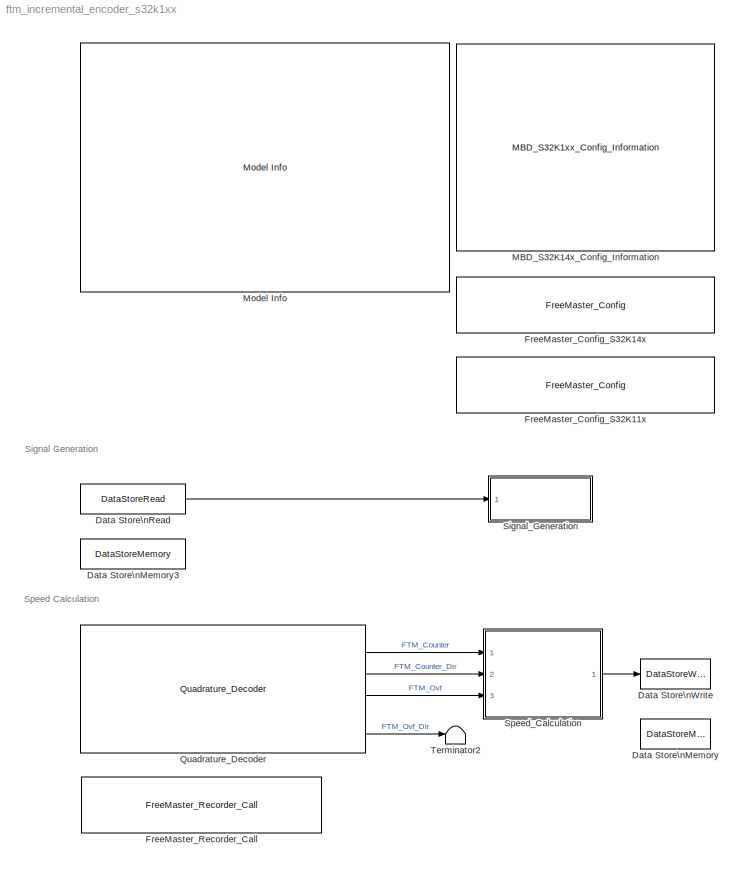
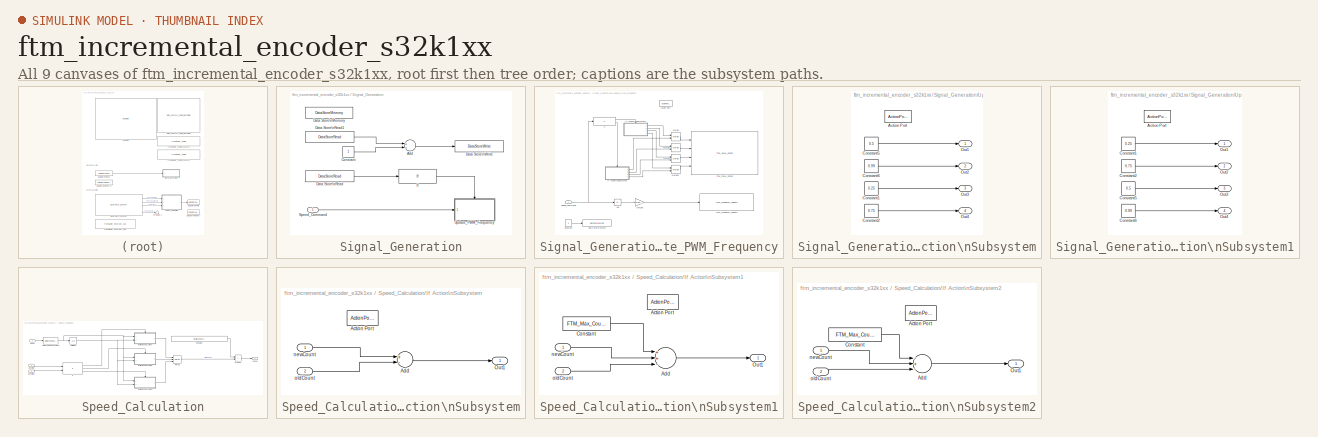
[diagram: thumbnail index - all 9 canvases of the model, root first then tree order]
MODEL ftm_incremental_encoder_s32k1xx
KIND model
CONFIG InitFcn = mbd_s32k_consistency_checks(bdroot(gcs));
BLOCK [DataStoreMemory] Data Store\nMemory
  DataStoreName = Motor_Speed
  ReadBeforeWriteMsg = warning
  SID = 170
  ShowAdditionalParam = off
  WriteAfterReadMsg = warning
  WriteAfterWriteMsg = warning
BLOCK [DataStoreMemory] Data Store\nMemory3
  DataStoreName = Speed_Command
  InitialValue = 500
  OutDataTypeStr = single
  ReadBeforeWriteMsg = warning
  SID = 235
  ShowAdditionalParam = off
  WriteAfterReadMsg = warning
  WriteAfterWriteMsg = warning
BLOCK [DataStoreRead] Data Store\nRead
  DataStoreName = Speed_Command
  Ports = [0, 1]
  SID = 236
BLOCK [DataStoreWrite] Data Store\nWrite
  DataStoreElements = Motor_Speed
  DataStoreName = Motor_Speed
  Ports = [1]
  SID = 172
BLOCK [Reference] FreeMaster_Config_S32K11x  REF=mbd_s32k1xx_ec_toolbox/Utility Blocks/FreeMaster_Config
  Commented = on
  Ports = []
  SID = 133
  SourceBlock = mbd_s32k1xx_ec_toolbox/Utility Blocks/FreeMaster_Config
  SourceType = fm_s32k_config
  baudrate = 57600
  comm_buffer_size = 255
  comm_buffer_size_auto = on
  comm_rqueue_size = 32
  comm_rqueue_size_default = on
  interface = LPUART0
  isr_prio = 1
  max_rec_vars = 8
  max_scope_vars = 8
  mode = Short Interrupt
  rec_buff_size = 1024
  rec_timebase = 0
  rec_timebase_unit = milliseconds
  rxd = PTB0: [LPUART0_RX | Receive]
  show_adv_opts = on
  txd = PTB1: [LPUART0_TX | Transmit]
  use_recorder = on
  use_scope = on
BLOCK [Reference] FreeMaster_Config_S32K14x  REF=mbd_s32k1xx_ec_toolbox/Utility Blocks/FreeMaster_Config
  Ports = []
  SID = 358
  SourceBlock = mbd_s32k1xx_ec_toolbox/Utility Blocks/FreeMaster_Config
  SourceType = fm_s32k_config
  baudrate = 57600
  comm_buffer_size = 255
  comm_buffer_size_auto = on
  comm_rqueue_size = 32
  comm_rqueue_size_default = on
  interface = LPUART1
  isr_prio = 1
  max_rec_vars = 8
  max_scope_vars = 8
  mode = Short Interrupt
  rec_buff_size = 1024
  rec_timebase = 0
  rec_timebase_unit = milliseconds
  rxd = PTC6: [LPUART1_RX | Receive]
  show_adv_opts = on
  txd = PTC7: [LPUART1_TX | Transmit]
  use_recorder = on
  use_scope = on
BLOCK [Reference] FreeMaster_Recorder_Call  REF=mbd_s32k1xx_ec_toolbox/Utility Blocks/FreeMaster_Recorder_Call
  Ports = []
  SID = 326
  SourceBlock = mbd_s32k1xx_ec_toolbox/Utility Blocks/FreeMaster_Recorder_Call
  SourceType = fm_s32k_recorder_call
BLOCK [Reference] MBD_S32K14x_Config_Information  REF=mbd_s32k1xx_ec_toolbox/MBD_S32K1xx_Config_Information
  ADC_PcrCheckEnDis = on
  AMMCLIB_PcrCheckEnDis = on
  CMP_PcrCheckEnDis = on
  CSEc_PcrCheckEnDis = on
  ConfigParams_PcrCheckEnDis = on
  FM_PcrCheckEnDis = on
  FTM_Dual_Edge_Inputs_PcrCheckEnDis = on
  FTM_Hall_Sensor_Inputs_PcrCheckEnDis = on
  FTM_Input_Edge_Inputs_PcrCheckEnDis = on
  FTM_PWM_PcrCheckEnDis = on
  FTM_Quadrature_Inputs_PcrCheckEnDis = on
  FlexCAN_PcrCheckEnDis = on
  FlexIO_PcrCheckEnDis = on
  GPIO_InputPcrCheckEnDis = on
  GPIO_OutputPcrCheckEnDis = on
  LIN_PcrCheckEnDis = on
  LPI2C_PcrCheckEnDis = on
  LPSPI_PcrCheckEnDis = on
  LPTMR_PcrCheckEnDis = on
  LPUART_PcrCheckEnDis = on
  ModelRef_PcrCheckEnDis = on
  PDB0_PcrCheckEnDis = on
  PIT_PcrCheckEnDis = on
  Ports = []
  Profile_PcrCheckEnDis = on
  RTC_PcrCheckEnDis = on
  SBC_PcrCheckEnDis = on
  SID = 1
  SourceBlock = mbd_s32k1xx_ec_toolbox/MBD_S32K1xx_Config_Information
  SourceType = MBDTBX_EC_S32K
  WDOG_PcrCheckEnDis = on
  config_params = []
  disp_str = Target : S32K144-48KB_SRAM\nPackage : 100-pin\nSystem clock : 80 MHz\nXTAL clock : External 8 MHz\nCompiler : IAR\nTarget Type : FLASH\nDownload Code after build : off\nStep Tick Interrupt Priority : 15
  ds_import_enable = on
  eDMA_PcrCheckEnDis = on
  gcc_target_assemble_opts = -mcpu=cortex-m4 -mthumb -mfloat-abi=hard -mfpu=fpv4-sp-d16 -g
  gcc_target_compile_opts = -mcpu=cortex-m4 -mthumb -mfloat-abi=hard -mfpu=fpv4-sp-d16 -O1 -g -gstrict-dwarf
  gcc_target_default_lcf = on
  gcc_target_link_opts = -mcpu=cortex-m4 -mthumb -mfloat-abi=hard -mfpu=fpv4-sp-d16
  gcc_target_user_lcf = S32K146_128_flash.ld
  ghs_target_assemble_opts = -cpu=cortexm4f -fpu=vfpv4_d16
  ghs_target_compile_opts = -cpu=cortexm4f -thumb -DARM_MATH_CM4 -fpu=vfpv4_d16 -fsingle -Ogeneral -Wundef -Wimplicit-int -Wshadow -Wtrigraphs --no_commons --gnu_asm -gnu99 -gdwarf-2 -G
  ghs_target_default_lcf = off
  ghs_target_link_opts = -cpu=cortexm4f -thumb -fpu=vfpv4_d16
  ghs_target_user_lcf = S32K146_128_flash.ld
  iar_target_assemble_opts = --cpu Cortex-M4F --thumb --fpu VFPv4_sp
  iar_target_compile_opts = --cpu=Cortex-M4F --thumb --fpu=VFPv4_sp -Ol -e --debug --dlib_config normal
  iar_target_default_lcf = off
  iar_target_link_opts = --no_exceptions --vfe --inline
  iar_target_user_lcf = S32K146_128_flash.icf
  mbdt_ver = 0
  mcu_steptick_prio = 0
  mcu_steptick_timer = LPIT Channel 0
  mcu_system_clock_freq = 80
  mcu_target_name = S32K146
  mcu_target_package = 144-LQFP
  mcu_target_sram_size = 128KB
  mcu_xtal_freq = External 8
  pil_download_enable = off
  pil_download_rate = 57600
  pil_opensda_drive = Custom
  pil_opensda_drive_custom = D
  pil_uart_instance = 0
  pil_uart_rx = PTA2: [LPUART0_RX | Receive]
  pil_uart_tx = PTA3: [LPUART0_TX | Transmit]
  rbl_com_port = Custom
  rbl_com_port_custom = COM1
  rbl_download_enable = on
  rbl_download_interface = OpenSDA
  rbl_restart_request = off
  rbl_start_delay = 5000000
  target_compiler = GCC
  target_memory = FLASH
BLOCK [Reference] Model Info  REF=simulink/Model-Wide\nUtilities/Model Info
  DisplayStringWithTags = Model Name: %<ModelName>\n\nDescription: %<Description>
  Frame = off
  HorizontalTextAlignment = Left
  LeftAlignmentValue = 0.02
  MaskDisplayString = Model Name: ftm_incremental_encoder_s32k1xx\\n\\nDescription: This model shows FlexTimer's Quadrature Decoder Mode.\\n\\nThe Quadrature Encoder signals of a running motor are emulated using the\\nblock called \"Signal_Generation\" using the FTM PWM. The FTM PWM writes\\nthe output on the pins PTD15, and PTD0.\\n\\nThe FTM Quadrature Decoder block has as input the pins PTA1, and PTB2.\\n\\nFor the ...<+500ch>
  Ports = []
  SID = 131
  SourceBlock = simulink/Model-Wide\nUtilities/Model Info
  SourceProductBaseCode = SL
  SourceProductName = Simulink
  SourceType = CMBlock
BLOCK [Reference] Quadrature_Decoder  REF=mbd_s32k1xx_ec_toolbox/Motor Control Blocks/FTM Blocks/Quadrature_Decoder
  Ports = [0, 4]
  Priority = 1
  SID = 146
  SourceBlock = mbd_s32k1xx_ec_toolbox/Motor Control Blocks/FTM Blocks/Quadrature_Decoder
  SourceType = FTM_s32k_qd_block
  cntin = 0
  ec_mode = Phase A and Phase B
  ftmModule = 1
  mod = 4096
  phA_filter = 0
  phA_filtr_en = off
  phA_pin = PTA1: [FTM1_QD_PHA | FTM quadrature Decode PhaseA]
  phB_filter = 0
  phB_filtr_en = off
  phB_pin = PTB2: [FTM1_QD_PHB | FTM quadrature Decode PhaseB]
  polA = Normal
  polB = Normal
  prescaler = 1
BLOCK [SubSystem] Signal_Generation
  Ports = [1]
  RequestExecContextInheritance = off
  SID = 359
  Variant = off
BLOCK [Sum] Signal_Generation/Add
  InputSameDT = off
  OutDataTypeStr = Inherit: Inherit via internal rule
  Ports = [2, 1]
  SID = 444
  SaturateOnIntegerOverflow = off
BLOCK [Constant] Signal_Generation/Constant
  SID = 443
BLOCK [DataStoreMemory] Signal_Generation/Data Store\nMemory
  DataStoreName = Speed_Command_Count
  ReadBeforeWriteMsg = warning
  SID = 440
  ShowAdditionalParam = off
  WriteAfterReadMsg = warning
  WriteAfterWriteMsg = warning
BLOCK [DataStoreRead] Signal_Generation/Data Store\nRead
  DataStoreElements = Speed_Command_Count
  DataStoreName = Speed_Command_Count
  Ports = [0, 1]
  Priority = 0
  SID = 441
BLOCK [DataStoreRead] Signal_Generation/Data Store\nRead1
  DataStoreElements = Speed_Command_Count
  DataStoreName = Speed_Command_Count
  Ports = [0, 1]
  SID = 442
BLOCK [DataStoreWrite] Signal_Generation/Data Store\nWrite
  DataStoreElements = Speed_Command_Count
  DataStoreName = Speed_Command_Count
  Ports = [1]
  SID = 445
BLOCK [If] Signal_Generation/If
  IfExpression = u1 > 20
  Ports = [1, 1]
  SID = 393
  ShowElse = off
BLOCK [Inport] Signal_Generation/Speed_Command
  IconDisplay = Port number
  SID = 360
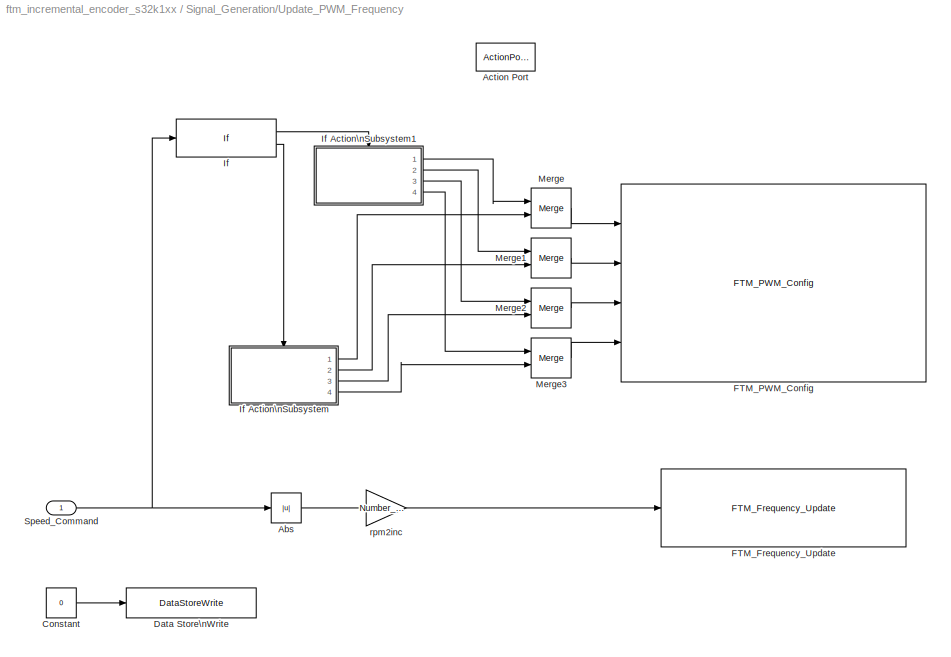
BLOCK [SubSystem] Signal_Generation/Update_PWM_Frequency
  Ports = [1, 0, 0, 0, 0, 0, 0, 1]
  RequestExecContextInheritance = off
  SID = 398
  TreatAsAtomicUnit = on
  Variant = off
BLOCK [Abs] Signal_Generation/Update_PWM_Frequency/Abs
  SID = 450
  SaturateOnIntegerOverflow = off
BLOCK [ActionPort] Signal_Generation/Update_PWM_Frequency/Action Port
  SID = 399
BLOCK [Constant] Signal_Generation/Update_PWM_Frequency/Constant
  SID = 448
  Value = 0
BLOCK [DataStoreWrite] Signal_Generation/Update_PWM_Frequency/Data Store\nWrite
  DataStoreElements = Speed_Command_Count
  DataStoreName = Speed_Command_Count
  Ports = [1]
  SID = 447
BLOCK [Reference] Signal_Generation/Update_PWM_Frequency/FTM_Frequency_Update  REF=mbd_s32k1xx_ec_toolbox/Motor Control Blocks/FTM Blocks/FTM_Frequency_Update
  Ports = [1]
  Priority = 1
  SID = 451
  SourceBlock = mbd_s32k1xx_ec_toolbox/Motor Control Blocks/FTM Blocks/FTM_Frequency_Update
  SourceType = FTM_s32k_freq_update_block
  ftmModule = 0
  ftmPwmUnits = Hz
  mcuTargetUpdate = on
BLOCK [Reference] Signal_Generation/Update_PWM_Frequency/FTM_PWM_Config  REF=mbd_s32k1xx_ec_toolbox/Motor Control Blocks/FTM Blocks/FTM_PWM_Config
  Ports = [4]
  SID = 452
  SourceBlock = mbd_s32k1xx_ec_toolbox/Motor Control Blocks/FTM Blocks/FTM_PWM_Config
  SourceType = FTM_s32k_pwm_config_block
  chTrigger0 = off
  chTrigger1 = off
  chTrigger2 = off
  chTrigger3 = off
  chTrigger4 = off
  chTrigger5 = off
  chTrigger6 = off
  chTrigger7 = off
  chan0En = on
  chan0Type = Independent
  chan2En = on
  chan2Type = Independent
  chan4En = off
  chan4Type = Independent
  chan6En = off
  chan6Type = Independent
  chnMatch0 = off
  chnMatch1 = off
  chnMatch2 = off
  chnMatch3 = off
  chnMatch4 = off
  chnMatch5 = off
  chnMatch6 = off
  chnMatch7 = off
  deadtimeNs = 0
  deadtimePrescaler = Divide by 1
  deadtimeTicks = 0
  deadtimeUnits = Nanoseconds
  dutyCycleCh0 = 0.5
  dutyCycleCh1 = 0.99
  dutyCycleCh2 = 0.25
  dutyCycleCh3 = 0.75
  dutyCycleCh4 = 0.25
  dutyCycleCh5 = 0.25
  dutyCycleCh6 = 0.25
  dutyCycleCh7 = 0.25
  dutyCycleSim = off
  fault_disen_0 = off
  fault_disen_1 = off
  fault_disen_2 = off
  fault_disen_3 = off
  fault_filter_0 = off
  fault_filter_1 = off
  fault_filter_2 = off
  fault_filter_3 = off
  fault_pin_0 = None
  fault_pin_1 = None
  fault_pin_2 = None
  fault_pin_3 = None
  fault_polarity_0 = Active High
  fault_polarity_1 = Active high
  fault_polarity_2 = Active high
  fault_polarity_3 = Active high
  ftmMode = Combine mode PWM
  ftmModule = 0
  ftmPeriod = 16000
  ftmPrescaler = Divide by 1
  ftmPwmUnits = Hz
  ftmSourceClock = 80 MHz
  initTrigger = off
  mcuTargetUpdate = on
  outFrequency = 5000
  outputComplem0 = Main duplicated
  outputComplem2 = Main duplicated
  outputComplem4 = Main duplicated
  outputComplem6 = Main duplicated
  outputLevel0 = Low
  outputLevel1 = Low
  outputLevel2 = Low
  outputLevel3 = Low
  outputLevel4 = Low
  outputLevel5 = Low
  outputLevel6 = Low
  outputLevel7 = Low
  pinFtmCh0 = PTD15: [FTM0_CH0 | FTM Channel]
  pinFtmCh1 = None
  pinFtmCh2 = PTD0: [FTM0_CH2 | FTM Channel]
  pinFtmCh3 = None
  pinFtmCh4 = PTB4: [FTM0_CH4 | FTM Channel]
  pinFtmCh5 = None
  pinFtmCh6 = PTE8: [FTM0_CH6 | FTM Channel]
  pinFtmCh7 = None
  pinPolCh0 = Active High
  pinPolCh1 = Active Low
  pinPolCh2 = Active High
  pinPolCh3 = Active Low
  pinPolCh4 = Active Low
  pinPolCh5 = Active Low
  pinPolCh6 = Active Low
  pinPolCh7 = Active Low
  pwmFaultClearing = Fault control disabled
  pwmFaultFilterValue = 0
  pwmFaultInterrupt = off
  pwmFaultPinState = Safe Value
  pwmFaultPriority = 0
  pwmFaultProtection = off
  pwmSyncAutoClear = on
  pwmSyncCounterInitial = System Clock
  pwmSyncHwRouting = TRGMUX_FTM7
  pwmSyncInvert = System Clock
  pwmSyncMaxLoad = on
  pwmSyncMinLoad = on
  pwmSyncOutControl = System Clock
  pwmSyncOutMask = System Clock
  pwmSyncPoints = Update now
  pwmSyncTrg = Software trigger
  pwmSyncTrg0 = off
  pwmSyncTrg1 = off
  pwmSyncTrg2 = off
  reloadEnable = off
  reloadFrequency = 0
  reloadHCR = 0
  reloadHalfCycle = off
  reloadPriority = 0
  showAdvOpt = on
  startAfterInit = on
  swcontrol_enable = off
BLOCK [If] Signal_Generation/Update_PWM_Frequency/If
  Ports = [1, 2]
  SID = 453
BLOCK [SubSystem] Signal_Generation/Update_PWM_Frequency/If Action\nSubsystem
  Ports = [0, 4, 0, 0, 0, 0, 0, 1]
  RequestExecContextInheritance = off
  SID = 454
  TreatAsAtomicUnit = on
  Variant = off
BLOCK [ActionPort] Signal_Generation/Update_PWM_Frequency/If Action\nSubsystem/Action Port
  SID = 455
BLOCK [Constant] Signal_Generation/Update_PWM_Frequency/If Action\nSubsystem/Constant1
  OutDataTypeStr = single
  SID = 456
  Value = 0.25
BLOCK [Constant] Signal_Generation/Update_PWM_Frequency/If Action\nSubsystem/Constant2
  OutDataTypeStr = single
  SID = 457
  Value = 0.75
BLOCK [Constant] Signal_Generation/Update_PWM_Frequency/If Action\nSubsystem/Constant5
  OutDataTypeStr = single
  SID = 458
  Value = 0.5
BLOCK [Constant] Signal_Generation/Update_PWM_Frequency/If Action\nSubsystem/Constant6
  OutDataTypeStr = single
  SID = 459
  Value = 0.99
BLOCK [Outport] Signal_Generation/Update_PWM_Frequency/If Action\nSubsystem/Out1
  IconDisplay = Port number
  SID = 460
BLOCK [Outport] Signal_Generation/Update_PWM_Frequency/If Action\nSubsystem/Out2
  IconDisplay = Port number
  Port = 2
  SID = 461
BLOCK [Outport] Signal_Generation/Update_PWM_Frequency/If Action\nSubsystem/Out3
  IconDisplay = Port number
  Port = 3
  SID = 462
BLOCK [Outport] Signal_Generation/Update_PWM_Frequency/If Action\nSubsystem/Out4
  IconDisplay = Port number
  Port = 4
  SID = 463
BLOCK [SubSystem] Signal_Generation/Update_PWM_Frequency/If Action\nSubsystem1
  Ports = [0, 4, 0, 0, 0, 0, 0, 1]
  RequestExecContextInheritance = off
  SID = 464
  TreatAsAtomicUnit = on
  Variant = off
BLOCK [ActionPort] Signal_Generation/Update_PWM_Frequency/If Action\nSubsystem1/Action Port
  SID = 465
BLOCK [Constant] Signal_Generation/Update_PWM_Frequency/If Action\nSubsystem1/Constant1
  OutDataTypeStr = single
  SID = 466
  Value = 0.25
BLOCK [Constant] Signal_Generation/Update_PWM_Frequency/If Action\nSubsystem1/Constant2
  OutDataTypeStr = single
  SID = 467
  Value = 0.75
BLOCK [Constant] Signal_Generation/Update_PWM_Frequency/If Action\nSubsystem1/Constant5
  OutDataTypeStr = single
  SID = 468
  Value = 0.5
BLOCK [Constant] Signal_Generation/Update_PWM_Frequency/If Action\nSubsystem1/Constant6
  OutDataTypeStr = single
  SID = 469
  Value = 0.99
BLOCK [Outport] Signal_Generation/Update_PWM_Frequency/If Action\nSubsystem1/Out1
  IconDisplay = Port number
  SID = 470
BLOCK [Outport] Signal_Generation/Update_PWM_Frequency/If Action\nSubsystem1/Out2
  IconDisplay = Port number
  Port = 2
  SID = 471
BLOCK [Outport] Signal_Generation/Update_PWM_Frequency/If Action\nSubsystem1/Out3
  IconDisplay = Port number
  Port = 3
  SID = 472
BLOCK [Outport] Signal_Generation/Update_PWM_Frequency/If Action\nSubsystem1/Out4
  IconDisplay = Port number
  Port = 4
  SID = 473
BLOCK [Merge] Signal_Generation/Update_PWM_Frequency/Merge
  Ports = [2, 1]
  SID = 474
BLOCK [Merge] Signal_Generation/Update_PWM_Frequency/Merge1
  Ports = [2, 1]
  SID = 475
BLOCK [Merge] Signal_Generation/Update_PWM_Frequency/Merge2
  Ports = [2, 1]
  SID = 476
BLOCK [Merge] Signal_Generation/Update_PWM_Frequency/Merge3
  Ports = [2, 1]
  SID = 477
BLOCK [Inport] Signal_Generation/Update_PWM_Frequency/Speed_Command
  IconDisplay = Port number
  SID = 449
BLOCK [Gain] Signal_Generation/Update_PWM_Frequency/rpm2inc
  Gain = Number_of_Divisions / 60
  OutDataTypeStr = uint32
  ParamDataTypeStr = Inherit: Inherit via internal rule
  SID = 478
  SaturateOnIntegerOverflow = off
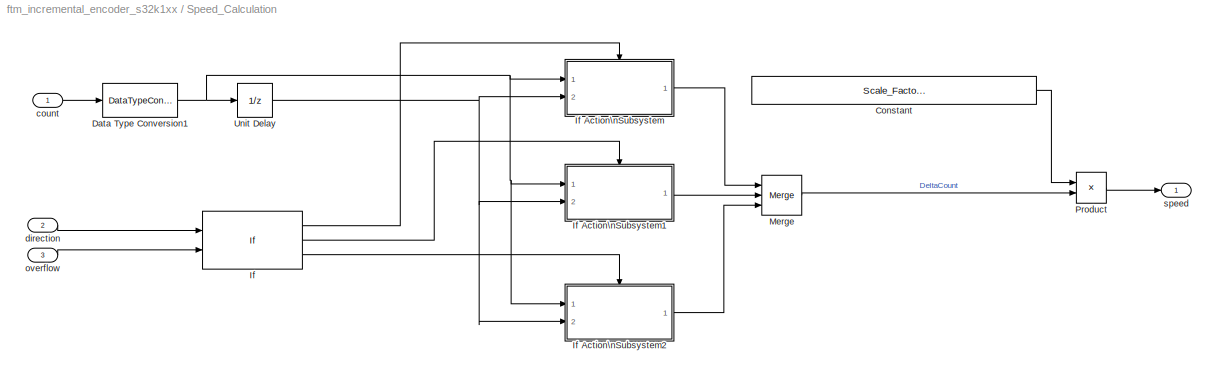
BLOCK [SubSystem] Speed_Calculation
  Ports = [3, 1]
  RequestExecContextInheritance = off
  SID = 148
  Variant = off
BLOCK [Constant] Speed_Calculation/Constant
  OutDataTypeStr = single
  SID = 158
  Value = Scale_Factor * 60 / (4 * Number_of_Divisions * Sampling_Time)
BLOCK [DataTypeConversion] Speed_Calculation/Data Type Conversion1
  OutDataTypeStr = single
  RndMeth = Floor
  SID = 204
  SaturateOnIntegerOverflow = off
BLOCK [If] Speed_Calculation/If
  ElseIfExpressions = u1
  IfExpression = ~u2
  NumInputs = 2
  Ports = [2, 3]
  SID = 202
BLOCK [SubSystem] Speed_Calculation/If Action\nSubsystem
  Ports = [2, 1, 0, 0, 0, 0, 0, 1]
  RequestExecContextInheritance = off
  SID = 206
  TreatAsAtomicUnit = on
  Variant = off
BLOCK [ActionPort] Speed_Calculation/If Action\nSubsystem/Action Port
  SID = 208
BLOCK [Sum] Speed_Calculation/If Action\nSubsystem/Add
  InputSameDT = off
  Inputs = +-
  OutDataTypeStr = Inherit: Inherit via internal rule
  Ports = [2, 1]
  SID = 217
  SaturateOnIntegerOverflow = off
BLOCK [Outport] Speed_Calculation/If Action\nSubsystem/Out1
  IconDisplay = Port number
  SID = 209
BLOCK [Inport] Speed_Calculation/If Action\nSubsystem/newCount
  IconDisplay = Port number
  SID = 207
BLOCK [Inport] Speed_Calculation/If Action\nSubsystem/oldCount
  IconDisplay = Port number
  Port = 2
  SID = 216
BLOCK [SubSystem] Speed_Calculation/If Action\nSubsystem1
  Ports = [2, 1, 0, 0, 0, 0, 0, 1]
  RequestExecContextInheritance = off
  SID = 218
  TreatAsAtomicUnit = on
  Variant = off
BLOCK [ActionPort] Speed_Calculation/If Action\nSubsystem1/Action Port
  SID = 221
BLOCK [Sum] Speed_Calculation/If Action\nSubsystem1/Add
  InputSameDT = off
  Inputs = ++-
  OutDataTypeStr = Inherit: Inherit via internal rule
  Ports = [3, 1]
  SID = 222
  SaturateOnIntegerOverflow = off
BLOCK [Constant] Speed_Calculation/If Action\nSubsystem1/Constant
  OutDataTypeStr = single
  SID = 230
  Value = FTM_Max_Counter
BLOCK [Outport] Speed_Calculation/If Action\nSubsystem1/Out1
  IconDisplay = Port number
  SID = 223
BLOCK [Inport] Speed_Calculation/If Action\nSubsystem1/newCount
  IconDisplay = Port number
  SID = 219
BLOCK [Inport] Speed_Calculation/If Action\nSubsystem1/oldCount
  IconDisplay = Port number
  Port = 2
  SID = 220
BLOCK [SubSystem] Speed_Calculation/If Action\nSubsystem2
  Ports = [2, 1, 0, 0, 0, 0, 0, 1]
  RequestExecContextInheritance = off
  SID = 224
  TreatAsAtomicUnit = on
  Variant = off
BLOCK [ActionPort] Speed_Calculation/If Action\nSubsystem2/Action Port
  SID = 227
BLOCK [Sum] Speed_Calculation/If Action\nSubsystem2/Add
  InputSameDT = off
  Inputs = -+-
  OutDataTypeStr = Inherit: Inherit via internal rule
  Ports = [3, 1]
  SID = 228
  SaturateOnIntegerOverflow = off
BLOCK [Constant] Speed_Calculation/If Action\nSubsystem2/Constant
  OutDataTypeStr = single
  SID = 231
  Value = FTM_Max_Counter
BLOCK [Outport] Speed_Calculation/If Action\nSubsystem2/Out1
  IconDisplay = Port number
  SID = 229
BLOCK [Inport] Speed_Calculation/If Action\nSubsystem2/newCount
  IconDisplay = Port number
  SID = 225
BLOCK [Inport] Speed_Calculation/If Action\nSubsystem2/oldCount
  IconDisplay = Port number
  Port = 2
  SID = 226
BLOCK [Merge] Speed_Calculation/Merge
  Inputs = 3
  Ports = [3, 1]
  SID = 232
BLOCK [Product] Speed_Calculation/Product
  InputSameDT = off
  OutDataTypeStr = single
  Ports = [2, 1]
  RndMeth = Floor
  SID = 157
  SaturateOnIntegerOverflow = off
BLOCK [UnitDelay] Speed_Calculation/Unit Delay
  InputProcessing = Elements as channels (sample based)
  SID = 201
  SampleTime = -1
BLOCK [Inport] Speed_Calculation/count
  IconDisplay = Port number
  SID = 149
BLOCK [Inport] Speed_Calculation/direction
  IconDisplay = Port number
  Port = 2
  SID = 198
BLOCK [Inport] Speed_Calculation/overflow
  IconDisplay = Port number
  Port = 3
  SID = 203
BLOCK [Outport] Speed_Calculation/speed
  IconDisplay = Port number
  SID = 150
BLOCK [Terminator] Terminator2
  SID = 169
ANNOTATION (root): Signal Generation
ANNOTATION (root): Speed Calculation
LINE Data Store\nRead:1 -> Signal_Generation:1
LINE Quadrature_Decoder:1 -> Speed_Calculation:1
LINE Quadrature_Decoder:2 -> Speed_Calculation:2
LINE Quadrature_Decoder:3 -> Speed_Calculation:3
LINE Quadrature_Decoder:4 -> Terminator2:1
LINE Signal_Generation/Add:1 -> Signal_Generation/Data Store\nWrite:1
LINE Signal_Generation/Constant:1 -> Signal_Generation/Add:2
LINE Signal_Generation/Data Store\nRead1:1 -> Signal_Generation/Add:1
LINE Signal_Generation/Data Store\nRead:1 -> Signal_Generation/If:1
LINE Signal_Generation/If:1 -> Signal_Generation/Update_PWM_Frequency:ifaction
LINE Signal_Generation/Speed_Command:1 -> Signal_Generation/Update_PWM_Frequency:1
LINE Signal_Generation/Update_PWM_Frequency/Abs:1 -> Signal_Generation/Update_PWM_Frequency/rpm2inc:1
LINE Signal_Generation/Update_PWM_Frequency/Constant:1 -> Signal_Generation/Update_PWM_Frequency/Data Store\nWrite:1
LINE Signal_Generation/Update_PWM_Frequency/If Action\nSubsystem/Constant1:1 -> Signal_Generation/Update_PWM_Frequency/If Action\nSubsystem/Out3:1
LINE Signal_Generation/Update_PWM_Frequency/If Action\nSubsystem/Constant2:1 -> Signal_Generation/Update_PWM_Frequency/If Action\nSubsystem/Out4:1
LINE Signal_Generation/Update_PWM_Frequency/If Action\nSubsystem/Constant5:1 -> Signal_Generation/Update_PWM_Frequency/If Action\nSubsystem/Out1:1
LINE Signal_Generation/Update_PWM_Frequency/If Action\nSubsystem/Constant6:1 -> Signal_Generation/Update_PWM_Frequency/If Action\nSubsystem/Out2:1
LINE Signal_Generation/Update_PWM_Frequency/If Action\nSubsystem1/Constant1:1 -> Signal_Generation/Update_PWM_Frequency/If Action\nSubsystem1/Out1:1
LINE Signal_Generation/Update_PWM_Frequency/If Action\nSubsystem1/Constant2:1 -> Signal_Generation/Update_PWM_Frequency/If Action\nSubsystem1/Out2:1
LINE Signal_Generation/Update_PWM_Frequency/If Action\nSubsystem1/Constant5:1 -> Signal_Generation/Update_PWM_Frequency/If Action\nSubsystem1/Out3:1
LINE Signal_Generation/Update_PWM_Frequency/If Action\nSubsystem1/Constant6:1 -> Signal_Generation/Update_PWM_Frequency/If Action\nSubsystem1/Out4:1
LINE Signal_Generation/Update_PWM_Frequency/If Action\nSubsystem1:1 -> Signal_Generation/Update_PWM_Frequency/Merge:1
LINE Signal_Generation/Update_PWM_Frequency/If Action\nSubsystem1:2 -> Signal_Generation/Update_PWM_Frequency/Merge1:1
LINE Signal_Generation/Update_PWM_Frequency/If Action\nSubsystem1:3 -> Signal_Generation/Update_PWM_Frequency/Merge2:1
LINE Signal_Generation/Update_PWM_Frequency/If Action\nSubsystem1:4 -> Signal_Generation/Update_PWM_Frequency/Merge3:1
LINE Signal_Generation/Update_PWM_Frequency/If Action\nSubsystem:1 -> Signal_Generation/Update_PWM_Frequency/Merge:2
LINE Signal_Generation/Update_PWM_Frequency/If Action\nSubsystem:2 -> Signal_Generation/Update_PWM_Frequency/Merge1:2
LINE Signal_Generation/Update_PWM_Frequency/If Action\nSubsystem:3 -> Signal_Generation/Update_PWM_Frequency/Merge2:2
LINE Signal_Generation/Update_PWM_Frequency/If Action\nSubsystem:4 -> Signal_Generation/Update_PWM_Frequency/Merge3:2
LINE Signal_Generation/Update_PWM_Frequency/If:1 -> Signal_Generation/Update_PWM_Frequency/If Action\nSubsystem1:ifaction
LINE Signal_Generation/Update_PWM_Frequency/If:2 -> Signal_Generation/Update_PWM_Frequency/If Action\nSubsystem:ifaction
LINE Signal_Generation/Update_PWM_Frequency/Merge1:1 -> Signal_Generation/Update_PWM_Frequency/FTM_PWM_Config:2
LINE Signal_Generation/Update_PWM_Frequency/Merge2:1 -> Signal_Generation/Update_PWM_Frequency/FTM_PWM_Config:3
LINE Signal_Generation/Update_PWM_Frequency/Merge3:1 -> Signal_Generation/Update_PWM_Frequency/FTM_PWM_Config:4
LINE Signal_Generation/Update_PWM_Frequency/Merge:1 -> Signal_Generation/Update_PWM_Frequency/FTM_PWM_Config:1
NET Signal_Generation/Update_PWM_Frequency/Speed_Command:1 -> Signal_Generation/Update_PWM_Frequency/Abs:1, Signal_Generation/Update_PWM_Frequency/If:1
LINE Signal_Generation/Update_PWM_Frequency/rpm2inc:1 -> Signal_Generation/Update_PWM_Frequency/FTM_Frequency_Update:1
LINE Speed_Calculation/Constant:1 -> Speed_Calculation/Product:1
NET Speed_Calculation/Data Type Conversion1:1 -> Speed_Calculation/If Action\nSubsystem1:1, Speed_Calculation/If Action\nSubsystem2:1, Speed_Calculation/If Action\nSubsystem:1, Speed_Calculation/Unit Delay:1
LINE Speed_Calculation/If Action\nSubsystem/Add:1 -> Speed_Calculation/If Action\nSubsystem/Out1:1
LINE Speed_Calculation/If Action\nSubsystem/newCount:1 -> Speed_Calculation/If Action\nSubsystem/Add:1
LINE Speed_Calculation/If Action\nSubsystem/oldCount:1 -> Speed_Calculation/If Action\nSubsystem/Add:2
LINE Speed_Calculation/If Action\nSubsystem1/Add:1 -> Speed_Calculation/If Action\nSubsystem1/Out1:1
LINE Speed_Calculation/If Action\nSubsystem1/Constant:1 -> Speed_Calculation/If Action\nSubsystem1/Add:1
LINE Speed_Calculation/If Action\nSubsystem1/newCount:1 -> Speed_Calculation/If Action\nSubsystem1/Add:2
LINE Speed_Calculation/If Action\nSubsystem1/oldCount:1 -> Speed_Calculation/If Action\nSubsystem1/Add:3
LINE Speed_Calculation/If Action\nSubsystem1:1 -> Speed_Calculation/Merge:2
LINE Speed_Calculation/If Action\nSubsystem2/Add:1 -> Speed_Calculation/If Action\nSubsystem2/Out1:1
LINE Speed_Calculation/If Action\nSubsystem2/Constant:1 -> Speed_Calculation/If Action\nSubsystem2/Add:1
LINE Speed_Calculation/If Action\nSubsystem2/newCount:1 -> Speed_Calculation/If Action\nSubsystem2/Add:2
LINE Speed_Calculation/If Action\nSubsystem2/oldCount:1 -> Speed_Calculation/If Action\nSubsystem2/Add:3
LINE Speed_Calculation/If Action\nSubsystem2:1 -> Speed_Calculation/Merge:3
LINE Speed_Calculation/If Action\nSubsystem:1 -> Speed_Calculation/Merge:1
LINE Speed_Calculation/If:1 -> Speed_Calculation/If Action\nSubsystem:ifaction
LINE Speed_Calculation/If:2 -> Speed_Calculation/If Action\nSubsystem1:ifaction
LINE Speed_Calculation/If:3 -> Speed_Calculation/If Action\nSubsystem2:ifaction
LINE Speed_Calculation/Merge:1 -> Speed_Calculation/Product:2
LINE Speed_Calculation/Product:1 -> Speed_Calculation/speed:1
NET Speed_Calculation/Unit Delay:1 -> Speed_Calculation/If Action\nSubsystem1:2, Speed_Calculation/If Action\nSubsystem2:2, Speed_Calculation/If Action\nSubsystem:2
LINE Speed_Calculation/count:1 -> Speed_Calculation/Data Type Conversion1:1
LINE Speed_Calculation/direction:1 -> Speed_Calculation/If:1
LINE Speed_Calculation/overflow:1 -> Speed_Calculation/If:2
LINE Speed_Calculation:1 -> Data Store\nWrite:1
note: NET lines group one-source signal fan-out (src -> all destinations, sorted); 1:1 wires keep LINE
